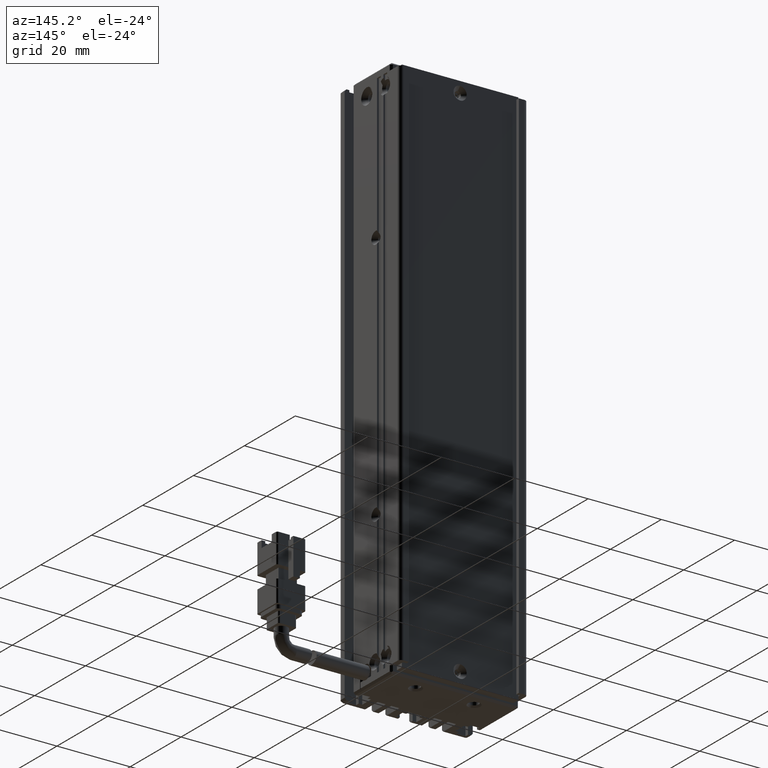
[diagram: clean part render]
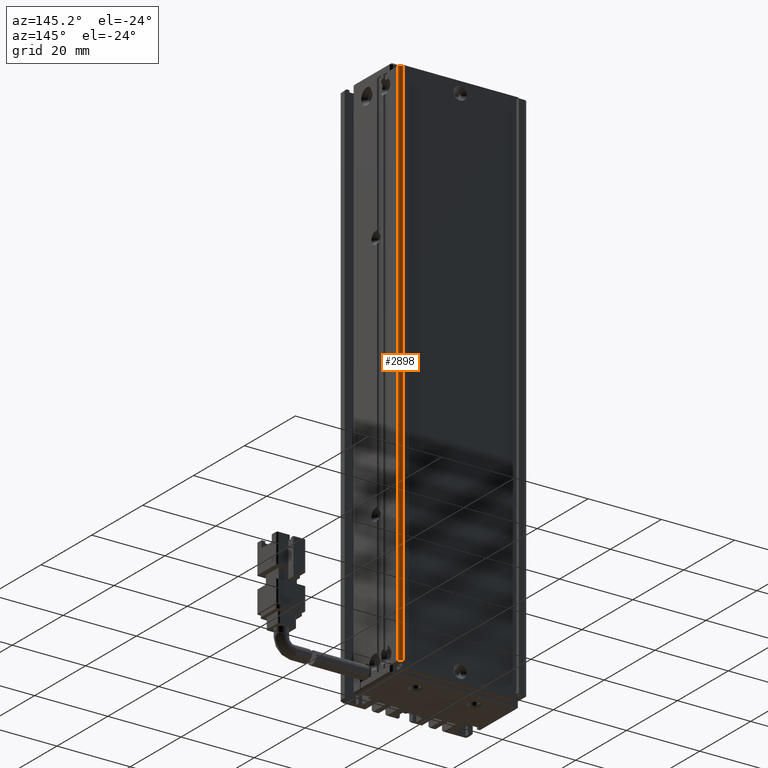
[diagram: same view with one face highlighted and labeled with its STEP entity id]
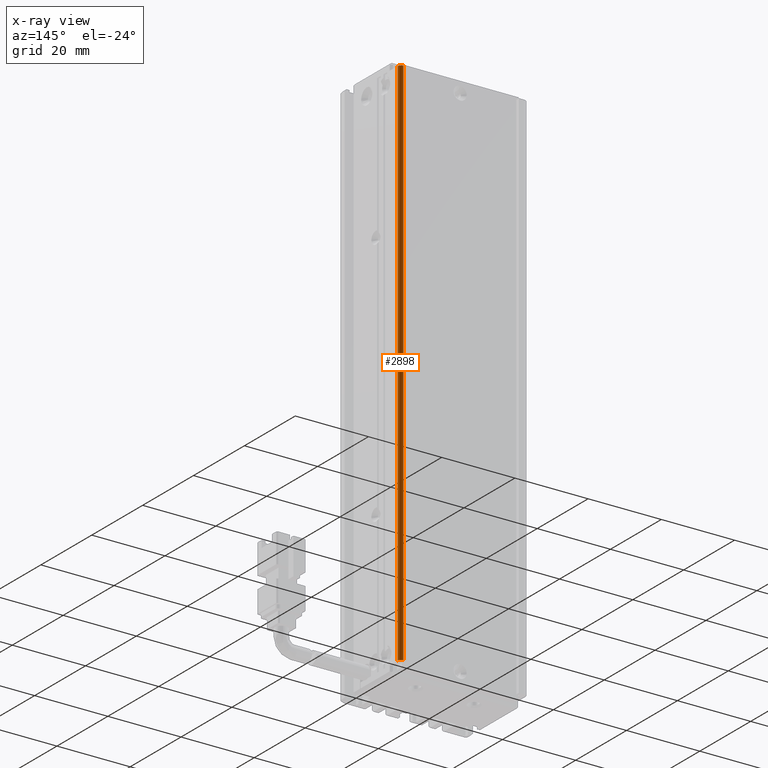
[diagram: x-ray of the same camera — body ghosted, the highlighted face saturated]
A machine part, auxiliary view. The second image highlights one B-rep face of the part: STEP entity #2898.
The next image is the same camera in x-ray: the body ghosted, the highlighted face saturated — about 0% of this face is hidden behind the body in this view.
In plain terms, the highlighted cylindrical surface (edge-blend (fillet) strip) has radius 1 mm, axis along (-0, -0, -1).
Its self-contained STEP definition (entity closure, byte-faithful):
#2765 = ORIENTED_EDGE ( 'NONE', *, *, #51928, .F. ) ;
#2898 = ADVANCED_FACE ( 'NONE', ( #51870 ), #36534, .T. ) ;
#3426 = AXIS2_PLACEMENT_3D ( 'NONE', #8544, #41486, #46475 ) ;
#3739 = VERTEX_POINT ( 'NONE', #3788 ) ;
#3788 = CARTESIAN_POINT ( 'NONE',  ( 57.42537974683541800, 34.99073232304837700, -188.0000000000000000 ) ) ;
#7584 = LINE ( 'NONE', #70111, #9334 ) ;
#8544 = CARTESIAN_POINT ( 'NONE',  ( 57.42537974683541800, 33.99073232304837700, -40.00000000000000700 ) ) ;
#9334 = VECTOR ( 'NONE', #54066, 1000.000000000000000 ) ;
#10385 = EDGE_CURVE ( 'NONE', #51705, #36234, #44450, .T. ) ;
#14113 = CARTESIAN_POINT ( 'NONE',  ( 57.42537974683541800, 33.99073232304837700, -42.00000000000000700 ) ) ;
#16476 = ORIENTED_EDGE ( 'NONE', *, *, #48025, .T. ) ;
#17578 = ORIENTED_EDGE ( 'NONE', *, *, #58290, .T. ) ;
#18752 = CIRCLE ( 'NONE', #23199, 1.000000000000000900 ) ;
#21690 = VERTEX_POINT ( 'NONE', #30517 ) ;
#23199 = AXIS2_PLACEMENT_3D ( 'NONE', #69255, #36318, #52997 ) ;
#30517 = CARTESIAN_POINT ( 'NONE',  ( 58.42537974683542500, 33.99073232304837700, -188.0000000000000000 ) ) ;
#32499 = DIRECTION ( 'NONE',  ( 0.0000000000000000000, 0.0000000000000000000, 1.000000000000000000 ) ) ;
#32624 = CARTESIAN_POINT ( 'NONE',  ( 58.42537974683542500, 33.99073232304837700, -42.00000000000000700 ) ) ;
#34173 = LINE ( 'NONE', #69091, #57313 ) ;
#34636 = CARTESIAN_POINT ( 'NONE',  ( 57.42537974683541800, 34.99073232304837700, -42.00000000000000700 ) ) ;
#34904 = AXIS2_PLACEMENT_3D ( 'NONE', #14113, #52281, #57861 ) ;
#36234 = VERTEX_POINT ( 'NONE', #32624 ) ;
#36318 = DIRECTION ( 'NONE',  ( -0.0000000000000000000, -0.0000000000000000000, -1.000000000000000000 ) ) ;
#36534 = CYLINDRICAL_SURFACE ( 'NONE', #3426, 1.000000000000000900 ) ;
#41486 = DIRECTION ( 'NONE',  ( -0.0000000000000000000, -0.0000000000000000000, -1.000000000000000000 ) ) ;
#44450 = CIRCLE ( 'NONE', #34904, 1.000000000000000900 ) ;
#46475 = DIRECTION ( 'NONE',  ( -1.000000000000000000, 0.0000000000000000000, 0.0000000000000000000 ) ) ;
#48025 = EDGE_CURVE ( 'NONE', #3739, #51705, #34173, .T. ) ;
#51323 = ORIENTED_EDGE ( 'NONE', *, *, #10385, .T. ) ;
#51705 = VERTEX_POINT ( 'NONE', #34636 ) ;
#51870 = FACE_OUTER_BOUND ( 'NONE', #57266, .T. ) ;
#51928 = EDGE_CURVE ( 'NONE', #3739, #21690, #18752, .T. ) ;
#52281 = DIRECTION ( 'NONE',  ( -0.0000000000000000000, -0.0000000000000000000, -1.000000000000000000 ) ) ;
#52997 = DIRECTION ( 'NONE',  ( -1.000000000000000000, 0.0000000000000000000, 0.0000000000000000000 ) ) ;
#54066 = DIRECTION ( 'NONE',  ( -0.0000000000000000000, -0.0000000000000000000, -1.000000000000000000 ) ) ;
#57266 = EDGE_LOOP ( 'NONE', ( #17578, #2765, #16476, #51323 ) ) ;
#57313 = VECTOR ( 'NONE', #32499, 1000.000000000000000 ) ;
#57861 = DIRECTION ( 'NONE',  ( -1.000000000000000000, 0.0000000000000000000, 0.0000000000000000000 ) ) ;
#58290 = EDGE_CURVE ( 'NONE', #36234, #21690, #7584, .T. ) ;
#69091 = CARTESIAN_POINT ( 'NONE',  ( 57.42537974683541100, 34.99073232304837700, -40.00000000000000700 ) ) ;
#69255 = CARTESIAN_POINT ( 'NONE',  ( 57.42537974683541800, 33.99073232304837700, -188.0000000000000000 ) ) ;
#70111 = CARTESIAN_POINT ( 'NONE',  ( 58.42537974683542500, 33.99073232304837700, -40.00000000000000700 ) ) ;